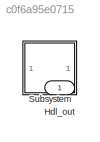
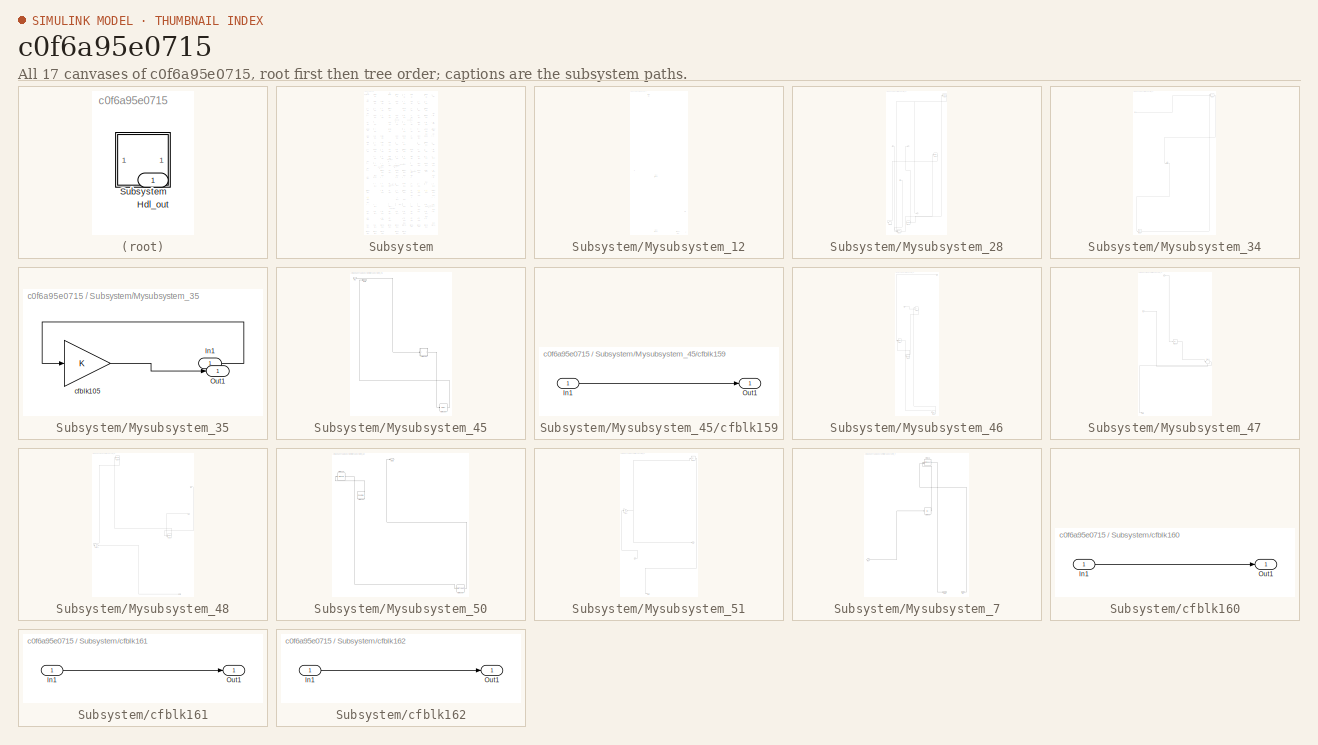
[diagram: thumbnail index - all 17 canvases of the model, root first then tree order]
MODEL slx_c0f6a95e0715
KIND model
CONFIG AbsTol = auto
CONFIG EnableMultiTasking = off
CONFIG FixedStep = auto
CONFIG MaxStep = auto
CONFIG MinStep = auto
CONFIG RelTol = 1e-3
CONFIG SampleTimeConstraint = Unconstrained
CONFIG SolverName = VariableStepAuto
CONFIG StartTime = 0.0
CONFIG StopTime = 10.0
BLOCK [Outport] Hdl_out
  OutDataTypeStr = uint8
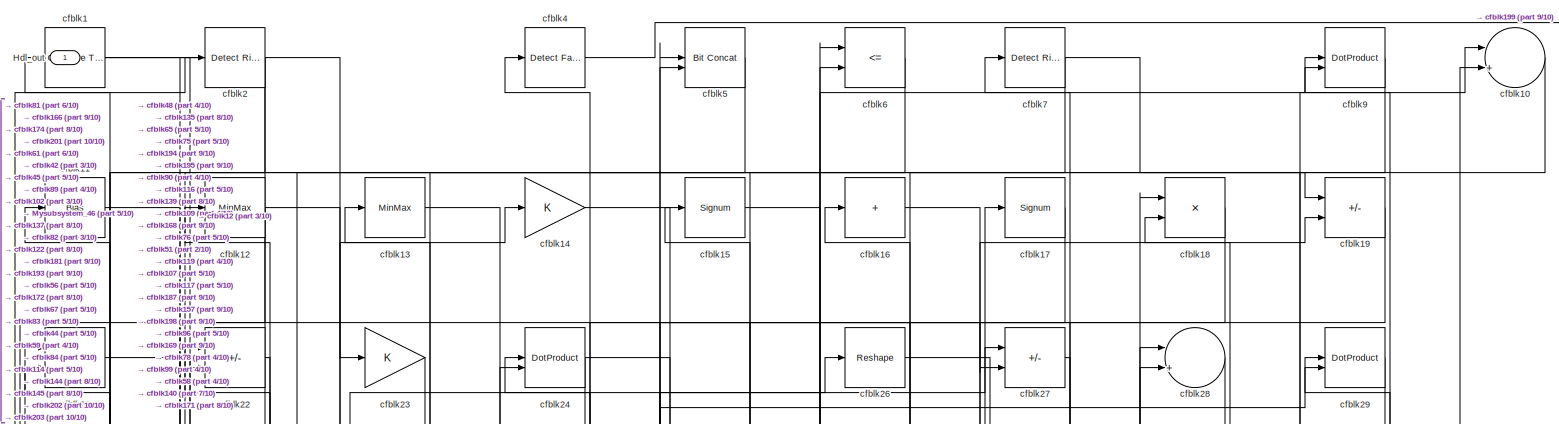
[diagram: Subsystem - part 1/10, full width, top band]
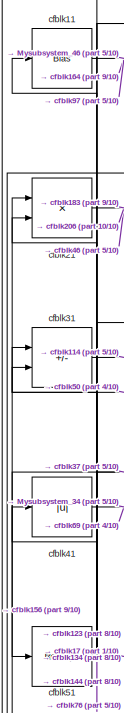
[diagram: Subsystem - part 2/10, top left region]
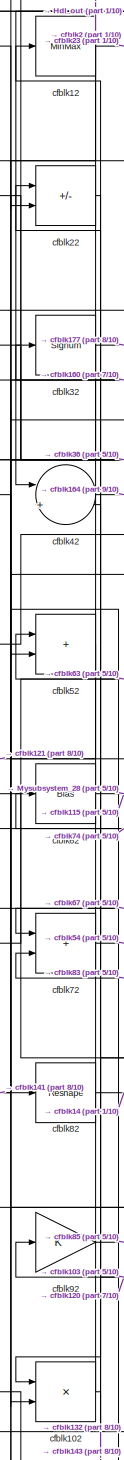
[diagram: Subsystem - part 3/10, top left region]
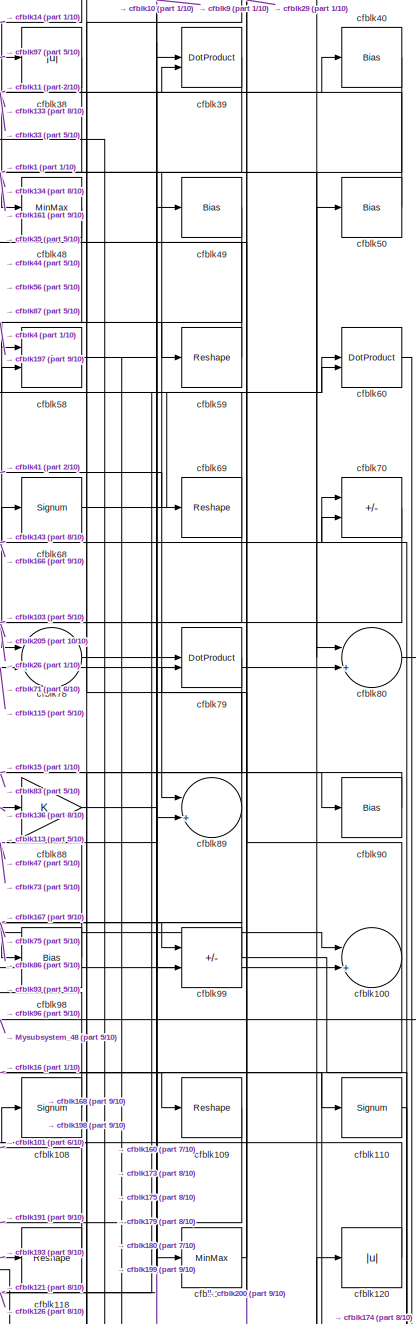
[diagram: Subsystem - part 4/10, middle right region]
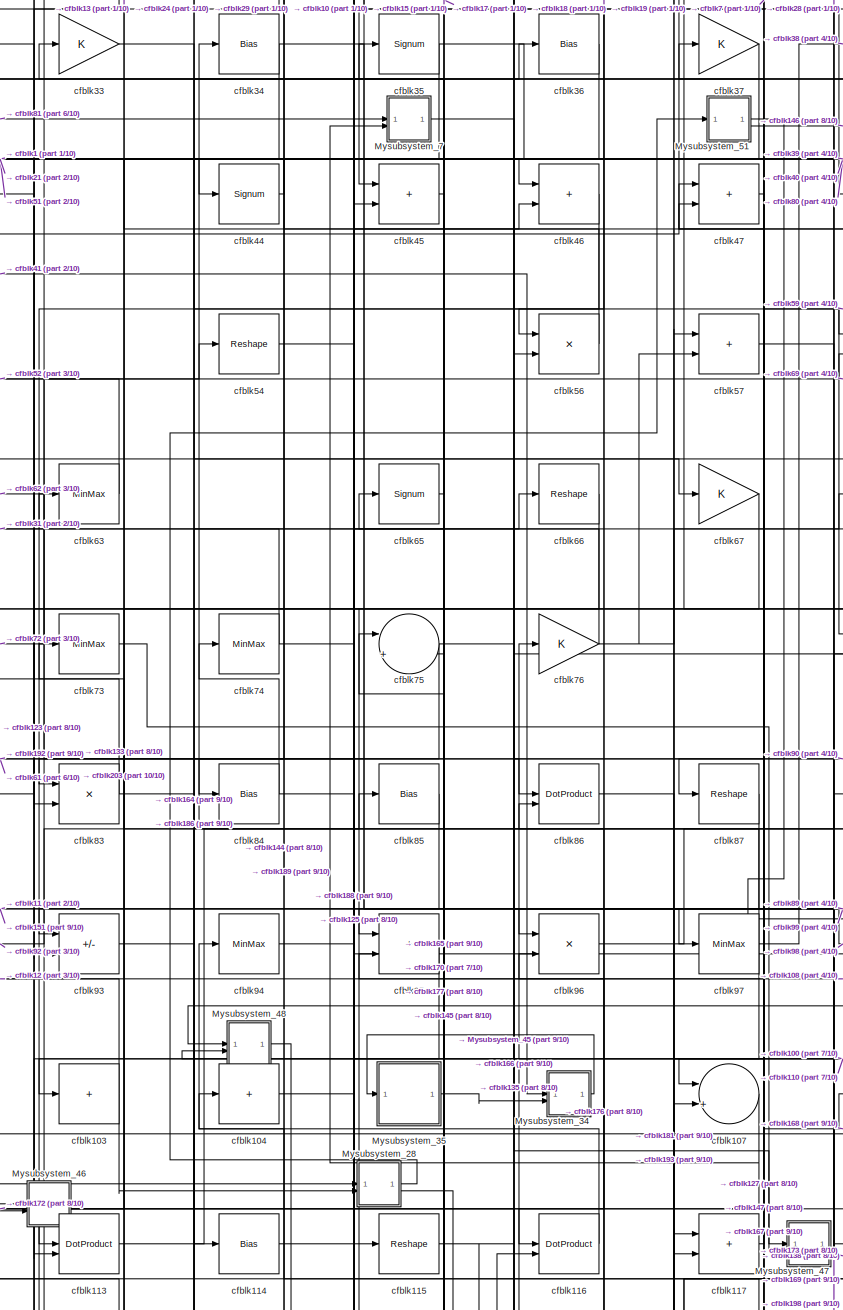
[diagram: Subsystem - part 5/10, central region]
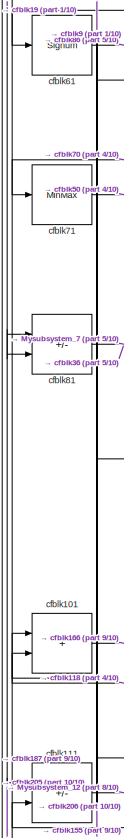
[diagram: Subsystem - part 6/10, middle left region]
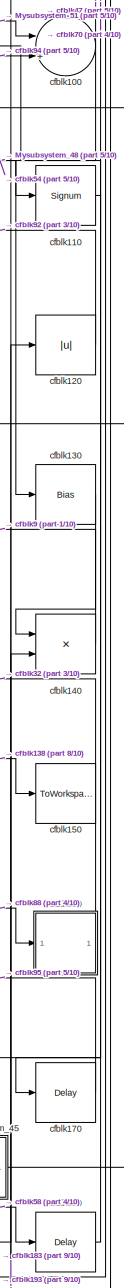
[diagram: Subsystem - part 7/10, middle right region]
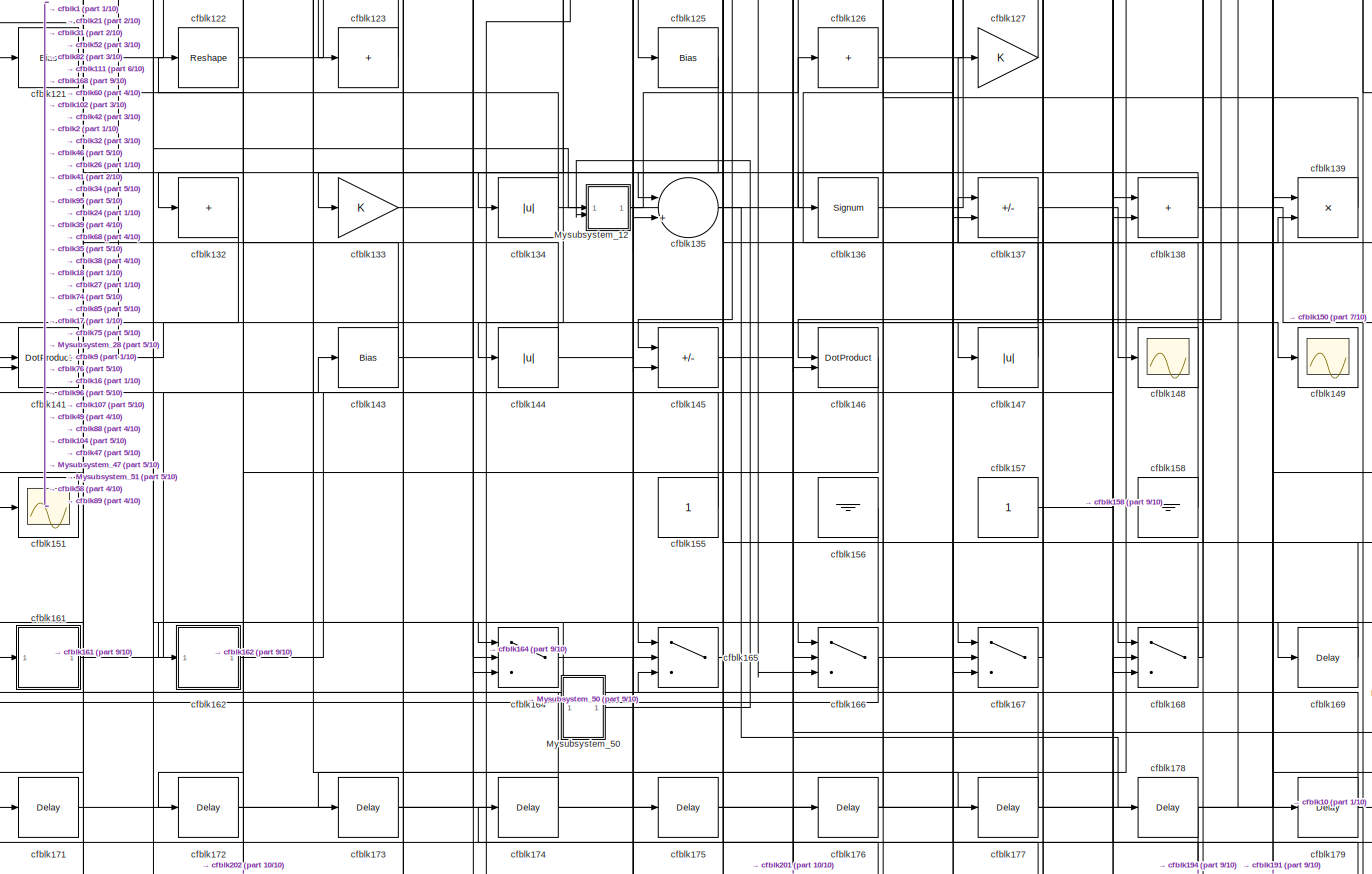
[diagram: Subsystem - part 8/10, full width, bottom band]
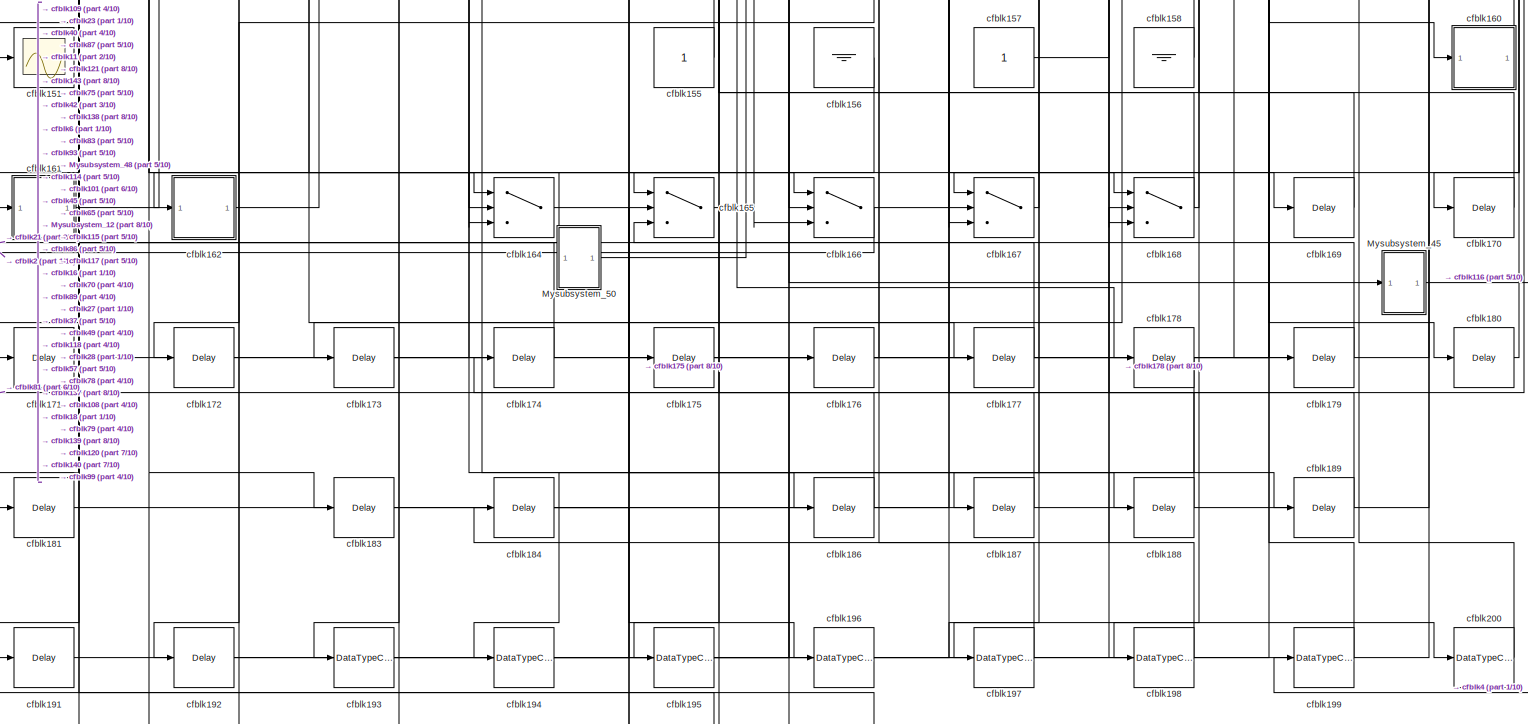
[diagram: Subsystem - part 9/10, full width, bottom band]
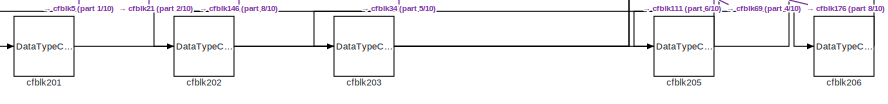
[diagram: Subsystem - part 10/10, bottom left region]
BLOCK [SubSystem] Subsystem
BLOCK [Outport] Subsystem/Hdl_out
  OutDataTypeStr = uint8
BLOCK [SubSystem] Subsystem/Mysubsystem_12
  RTWFcnName = Mysubsystem_12
  RTWFcnNameOpts = User specified
  RTWFileNameOpts = Use function name
  RTWSystemCode = Reusable function
  TreatAsAtomicUnit = on
BLOCK [Inport] Subsystem/Mysubsystem_12/In1
BLOCK [Outport] Subsystem/Mysubsystem_12/Out1
BLOCK [DotProduct] Subsystem/Mysubsystem_12/cfblk124
  OutDataTypeStr = Inherit: Inherit via internal rule
BLOCK [DataTypeConversion] Subsystem/Mysubsystem_12/cfblk204
  OutDataTypeStr = uint8
  RndMeth = Floor
  SaturateOnIntegerOverflow = off
BLOCK [DataTypeConversion] Subsystem/Mysubsystem_12/cfblk207
  OutDataTypeStr = uint8
  RndMeth = Floor
  SaturateOnIntegerOverflow = off
BLOCK [Reference] Subsystem/Mysubsystem_12/cfblk3  REF=simulink/Logic and Bit
Operations/Extract Bits
  LibrarySourceBlock = hdlsllib/Logic and Bit\nOperations/Extract Bits
  SourceBlock = simulink/Logic and Bit\nOperations/Extract Bits
  SourceType = Extract Bits
BLOCK [Inport] Subsystem/Mysubsystem_12/u
  Port = 2
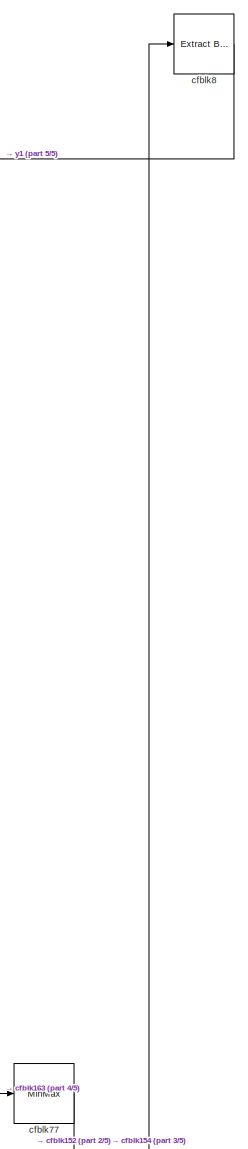
[diagram: Subsystem/Mysubsystem_28 - part 1/5, top right region]
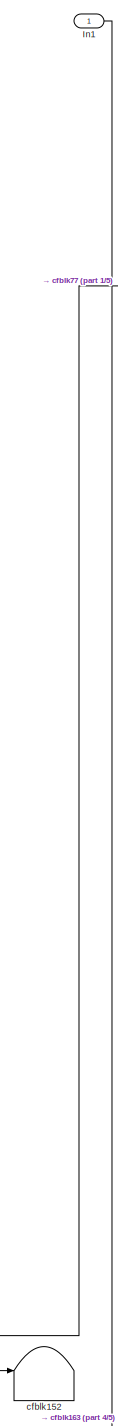
[diagram: Subsystem/Mysubsystem_28 - part 2/5, middle left region]
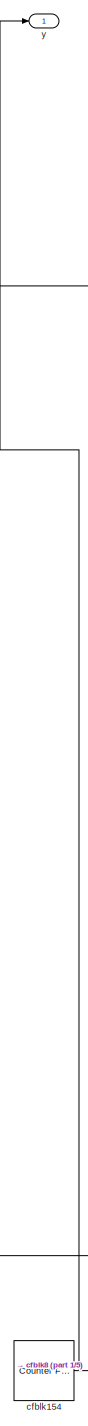
[diagram: Subsystem/Mysubsystem_28 - part 3/5, central region]
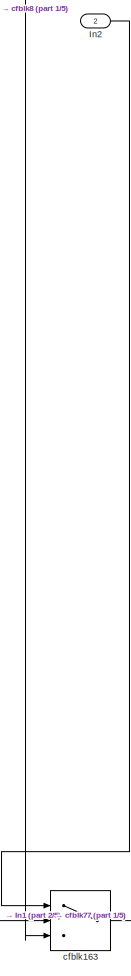
[diagram: Subsystem/Mysubsystem_28 - part 4/5, bottom left region]
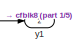
[diagram: Subsystem/Mysubsystem_28 - part 5/5, bottom center region]
BLOCK [SubSystem] Subsystem/Mysubsystem_28
  RTWFcnName = Mysubsystem_28
  RTWFcnNameOpts = User specified
  RTWFileNameOpts = Use function name
  RTWSystemCode = Reusable function
  TreatAsAtomicUnit = on
BLOCK [Inport] Subsystem/Mysubsystem_28/In1
BLOCK [Inport] Subsystem/Mysubsystem_28/In2
  Port = 2
BLOCK [Terminator] Subsystem/Mysubsystem_28/cfblk152
BLOCK [Reference] Subsystem/Mysubsystem_28/cfblk154  REF=hdlsllib/Sources/Counter
Free-Running
  SourceBlock = hdlsllib/Sources/Counter\nFree-Running
  SourceType = Counter Free-Running
BLOCK [Switch] Subsystem/Mysubsystem_28/cfblk163
  InputSameDT = off
  SaturateOnIntegerOverflow = off
BLOCK [MinMax] Subsystem/Mysubsystem_28/cfblk77
BLOCK [Reference] Subsystem/Mysubsystem_28/cfblk8  REF=simulink/Logic and Bit
Operations/Extract Bits
  LibrarySourceBlock = hdlsllib/Logic and Bit\nOperations/Extract Bits
  SourceBlock = simulink/Logic and Bit\nOperations/Extract Bits
  SourceType = Extract Bits
BLOCK [Outport] Subsystem/Mysubsystem_28/y
BLOCK [Outport] Subsystem/Mysubsystem_28/y1
  Port = 2
BLOCK [SubSystem] Subsystem/Mysubsystem_34
  RTWFcnName = Mysubsystem_34
  RTWFcnNameOpts = User specified
  RTWFileNameOpts = Use function name
  RTWSystemCode = Reusable function
  TreatAsAtomicUnit = on
BLOCK [Inport] Subsystem/Mysubsystem_34/In1
BLOCK [Inport] Subsystem/Mysubsystem_34/In2
  Port = 2
BLOCK [Outport] Subsystem/Mysubsystem_34/Out1
BLOCK [Delay] Subsystem/Mysubsystem_34/cfblk182
  InputPortMap = u0
  SampleTime = 1
BLOCK [Sum] Subsystem/Mysubsystem_34/cfblk30
  IconShape = rectangular
  Inputs = +-
BLOCK [SubSystem] Subsystem/Mysubsystem_35
  RTWFcnName = Mysubsystem_35
  RTWFcnNameOpts = User specified
  RTWFileNameOpts = Use function name
  RTWSystemCode = Reusable function
  TreatAsAtomicUnit = on
BLOCK [Inport] Subsystem/Mysubsystem_35/In1
BLOCK [Outport] Subsystem/Mysubsystem_35/Out1
BLOCK [Gain] Subsystem/Mysubsystem_35/cfblk105
BLOCK [SubSystem] Subsystem/Mysubsystem_45
  RTWFcnName = Mysubsystem_45
  RTWFcnNameOpts = User specified
  RTWFileNameOpts = Use function name
  RTWSystemCode = Reusable function
  TreatAsAtomicUnit = on
BLOCK [Inport] Subsystem/Mysubsystem_45/In1
BLOCK [Outport] Subsystem/Mysubsystem_45/Out1
BLOCK [SubSystem] Subsystem/Mysubsystem_45/cfblk159
  LibrarySourceBlock = hdlsllib/Ports &\nSubsystems/Subsystem
BLOCK [Inport] Subsystem/Mysubsystem_45/cfblk159/In1
BLOCK [Outport] Subsystem/Mysubsystem_45/cfblk159/Out1
BLOCK [Delay] Subsystem/Mysubsystem_45/cfblk190
  InputPortMap = u0
  SampleTime = 1
BLOCK [SubSystem] Subsystem/Mysubsystem_46
  RTWFcnName = Mysubsystem_46
  RTWFcnNameOpts = User specified
  RTWFileNameOpts = Use function name
  RTWSystemCode = Reusable function
  TreatAsAtomicUnit = on
BLOCK [Inport] Subsystem/Mysubsystem_46/In1
BLOCK [Inport] Subsystem/Mysubsystem_46/In2
  Port = 2
BLOCK [Reshape] Subsystem/Mysubsystem_46/cfblk112
BLOCK [Delay] Subsystem/Mysubsystem_46/cfblk185
  InputPortMap = u0
  SampleTime = 1
BLOCK [Sum] Subsystem/Mysubsystem_46/cfblk53
  IconShape = rectangular
BLOCK [DotProduct] Subsystem/Mysubsystem_46/cfblk91
  OutDataTypeStr = Inherit: Inherit via internal rule
BLOCK [SubSystem] Subsystem/Mysubsystem_47
  RTWFcnName = Mysubsystem_47
  RTWFcnNameOpts = User specified
  RTWFileNameOpts = Use function name
  RTWSystemCode = Reusable function
  TreatAsAtomicUnit = on
BLOCK [Inport] Subsystem/Mysubsystem_47/In1
BLOCK [Inport] Subsystem/Mysubsystem_47/In2
  Port = 2
BLOCK [Outport] Subsystem/Mysubsystem_47/Out1
BLOCK [Abs] Subsystem/Mysubsystem_47/cfblk106
  SaturateOnIntegerOverflow = off
BLOCK [Sum] Subsystem/Mysubsystem_47/cfblk129
  Inputs = |++
BLOCK [SubSystem] Subsystem/Mysubsystem_48
  RTWFcnName = Mysubsystem_48
  RTWFcnNameOpts = User specified
  RTWFileNameOpts = Use function name
  RTWSystemCode = Reusable function
  TreatAsAtomicUnit = on
BLOCK [Inport] Subsystem/Mysubsystem_48/In1
BLOCK [Inport] Subsystem/Mysubsystem_48/In2
  Port = 2
BLOCK [Outport] Subsystem/Mysubsystem_48/Out1
BLOCK [DotProduct] Subsystem/Mysubsystem_48/cfblk128
  OutDataTypeStr = Inherit: Inherit via internal rule
BLOCK [Gain] Subsystem/Mysubsystem_48/cfblk131
BLOCK [Signum] Subsystem/Mysubsystem_48/cfblk43
BLOCK [SubSystem] Subsystem/Mysubsystem_50
  RTWFcnName = Mysubsystem_50
  RTWFcnNameOpts = User specified
  RTWFileNameOpts = Use function name
  RTWSystemCode = Reusable function
  TreatAsAtomicUnit = on
BLOCK [Outport] Subsystem/Mysubsystem_50/Out1
BLOCK [Signum] Subsystem/Mysubsystem_50/cfblk142
BLOCK [Reference] Subsystem/Mysubsystem_50/cfblk153  REF=hdlsllib/Sources/Counter
Limited
  SourceBlock = hdlsllib/Sources/Counter\nLimited
  SourceType = Counter Limited
BLOCK [DataTypeConversion] Subsystem/Mysubsystem_50/cfblk208
  OutDataTypeStr = uint8
  RndMeth = Floor
  SaturateOnIntegerOverflow = off
BLOCK [SubSystem] Subsystem/Mysubsystem_51
  RTWFcnName = Mysubsystem_51
  RTWFcnNameOpts = User specified
  RTWFileNameOpts = Use function name
  RTWSystemCode = Reusable function
  TreatAsAtomicUnit = on
BLOCK [Inport] Subsystem/Mysubsystem_51/In1
BLOCK [Outport] Subsystem/Mysubsystem_51/Out1
BLOCK [Outport] Subsystem/Mysubsystem_51/Out2
  Port = 2
BLOCK [Abs] Subsystem/Mysubsystem_51/cfblk20
  SaturateOnIntegerOverflow = off
BLOCK [Gain] Subsystem/Mysubsystem_51/cfblk64
BLOCK [SubSystem] Subsystem/Mysubsystem_7
  RTWFcnName = Mysubsystem_7
  RTWFcnNameOpts = User specified
  RTWFileNameOpts = Use function name
  RTWSystemCode = Reusable function
  TreatAsAtomicUnit = on
BLOCK [Inport] Subsystem/Mysubsystem_7/In1
BLOCK [Inport] Subsystem/Mysubsystem_7/In2
  Port = 2
BLOCK [Outport] Subsystem/Mysubsystem_7/Out1
BLOCK [DotProduct] Subsystem/Mysubsystem_7/cfblk25
  OutDataTypeStr = Inherit: Inherit via internal rule
BLOCK [Abs] Subsystem/Mysubsystem_7/cfblk55
  SaturateOnIntegerOverflow = off
BLOCK [Reference] Subsystem/cfblk1  REF=hdlsllib/Logic and Bit
Operations/Compare
To Constant
  SourceBlock = hdlsllib/Logic and Bit\nOperations/Compare\nTo Constant
  SourceType = Compare To Constant
BLOCK [Sum] Subsystem/cfblk10
  Inputs = |++
  OutDataTypeStr = uint8
BLOCK [Sum] Subsystem/cfblk100
  Inputs = |++
  OutDataTypeStr = uint8
BLOCK [Sum] Subsystem/cfblk101
  IconShape = rectangular
  OutDataTypeStr = uint8
BLOCK [Product] Subsystem/cfblk102
  Inputs = */
  OutDataTypeStr = uint8
  RndMeth = Zero
  SaturateOnIntegerOverflow = on
BLOCK [Sum] Subsystem/cfblk103
  IconShape = rectangular
  Inputs = +
  OutDataTypeStr = uint8
BLOCK [Sum] Subsystem/cfblk104
  IconShape = rectangular
  Inputs = +
  OutDataTypeStr = uint8
BLOCK [Sum] Subsystem/cfblk107
  Inputs = |++
  OutDataTypeStr = uint8
BLOCK [Signum] Subsystem/cfblk108
BLOCK [Reshape] Subsystem/cfblk109
BLOCK [Bias] Subsystem/cfblk11
  Bias = 0.0
  SaturateOnIntegerOverflow = off
BLOCK [Signum] Subsystem/cfblk110
BLOCK [Sum] Subsystem/cfblk111
  IconShape = rectangular
  Inputs = +-
  OutDataTypeStr = uint8
BLOCK [DotProduct] Subsystem/cfblk113
  OutDataTypeStr = uint8
BLOCK [Bias] Subsystem/cfblk114
  Bias = 0.0
  SaturateOnIntegerOverflow = off
BLOCK [Reshape] Subsystem/cfblk115
BLOCK [DotProduct] Subsystem/cfblk116
  OutDataTypeStr = uint8
BLOCK [Sum] Subsystem/cfblk117
  IconShape = rectangular
  OutDataTypeStr = uint8
BLOCK [Reshape] Subsystem/cfblk118
BLOCK [MinMax] Subsystem/cfblk119
  OutDataTypeStr = uint8
BLOCK [MinMax] Subsystem/cfblk12
  OutDataTypeStr = uint8
BLOCK [Abs] Subsystem/cfblk120
  OutDataTypeStr = uint8
  SaturateOnIntegerOverflow = off
BLOCK [Bias] Subsystem/cfblk121
  Bias = 0.0
  SaturateOnIntegerOverflow = off
BLOCK [Reshape] Subsystem/cfblk122
BLOCK [Sum] Subsystem/cfblk123
  IconShape = rectangular
  Inputs = +
  OutDataTypeStr = uint8
BLOCK [Bias] Subsystem/cfblk125
  Bias = 0.0
  SaturateOnIntegerOverflow = off
BLOCK [Sum] Subsystem/cfblk126
  IconShape = rectangular
  Inputs = +
  OutDataTypeStr = uint8
BLOCK [Gain] Subsystem/cfblk127
  OutDataTypeStr = uint8
BLOCK [MinMax] Subsystem/cfblk13
  OutDataTypeStr = uint8
BLOCK [Bias] Subsystem/cfblk130
  Bias = 0.0
  SaturateOnIntegerOverflow = off
BLOCK [Sum] Subsystem/cfblk132
  IconShape = rectangular
  Inputs = +
  OutDataTypeStr = uint8
BLOCK [Gain] Subsystem/cfblk133
  OutDataTypeStr = uint8
BLOCK [Abs] Subsystem/cfblk134
  OutDataTypeStr = uint8
  SaturateOnIntegerOverflow = off
BLOCK [Sum] Subsystem/cfblk135
  Inputs = |++
  OutDataTypeStr = uint8
BLOCK [Signum] Subsystem/cfblk136
BLOCK [Sum] Subsystem/cfblk137
  IconShape = rectangular
  Inputs = +-
  OutDataTypeStr = uint8
BLOCK [Sum] Subsystem/cfblk138
  IconShape = rectangular
  OutDataTypeStr = uint8
BLOCK [Product] Subsystem/cfblk139
  Inputs = */
  OutDataTypeStr = uint8
  RndMeth = Zero
  SaturateOnIntegerOverflow = on
BLOCK [Gain] Subsystem/cfblk14
  OutDataTypeStr = uint8
BLOCK [Product] Subsystem/cfblk140
  Inputs = */
  OutDataTypeStr = uint8
  RndMeth = Zero
  SaturateOnIntegerOverflow = on
BLOCK [DotProduct] Subsystem/cfblk141
  OutDataTypeStr = uint8
BLOCK [Bias] Subsystem/cfblk143
  Bias = 0.0
  SaturateOnIntegerOverflow = off
BLOCK [Abs] Subsystem/cfblk144
  OutDataTypeStr = uint8
  SaturateOnIntegerOverflow = off
BLOCK [Sum] Subsystem/cfblk145
  IconShape = rectangular
  Inputs = +-
  OutDataTypeStr = uint8
BLOCK [DotProduct] Subsystem/cfblk146
  OutDataTypeStr = uint8
BLOCK [Abs] Subsystem/cfblk147
  OutDataTypeStr = uint8
  SaturateOnIntegerOverflow = off
BLOCK [Scope] Subsystem/cfblk148
  Floating = off
  NumInputPorts = 1
  ScopeSpecificationString = Simulink.scopes.TimeScopeBlockCfg('CurrentConfiguration', extmgr.ConfigurationSet(extmgr.Configuration('Core','General UI',true),extmgr.Configuration('Core','Source UI',true),extmgr.Configuration('Sources','WiredSimulink',true,'DataLoggingVariableName','ScopeData1','DataLoggingSaveFormat','Array','DataLoggingLimitDataPoints',true,'DataLoggingDecimation','1'),extmgr.Configuration('Visuals','Time Do...<+868ch>
BLOCK [Scope] Subsystem/cfblk149
  Floating = off
  NumInputPorts = 1
  ScopeSpecificationString = Simulink.scopes.TimeScopeBlockCfg('CurrentConfiguration', extmgr.ConfigurationSet(extmgr.Configuration('Core','General UI',true),extmgr.Configuration('Core','Source UI',true),extmgr.Configuration('Sources','WiredSimulink',true,'DataLoggingVariableName','ScopeData2','DataLoggingSaveFormat','Array','DataLoggingLimitDataPoints',true,'DataLoggingDecimation','1'),extmgr.Configuration('Visuals','Time Do...<+868ch>
BLOCK [Signum] Subsystem/cfblk15
BLOCK [ToWorkspace] Subsystem/cfblk150
  MaxDataPoints = inf
  SampleTime = -1
  SaveFormat = Timeseries
  VariableName = simout
BLOCK [Scope] Subsystem/cfblk151
  Floating = off
  NumInputPorts = 1
  ScopeSpecificationString = Simulink.scopes.TimeScopeBlockCfg('CurrentConfiguration', extmgr.ConfigurationSet(extmgr.Configuration('Core','General UI',true),extmgr.Configuration('Core','Source UI',true),extmgr.Configuration('Sources','WiredSimulink',true,'DataLoggingSaveFormat','Array','DataLoggingLimitDataPoints',true,'DataLoggingDecimation','1'),extmgr.Configuration('Visuals','Time Domain',true,'DisplayPropertyDefaults',st...<+829ch>
BLOCK [Constant] Subsystem/cfblk155
  OutDataTypeStr = uint8
  SampleTime = -1
BLOCK [Ground] Subsystem/cfblk156
BLOCK [Constant] Subsystem/cfblk157
  OutDataTypeStr = uint8
  SampleTime = -1
BLOCK [Ground] Subsystem/cfblk158
BLOCK [Sum] Subsystem/cfblk16
  IconShape = rectangular
  Inputs = +
  OutDataTypeStr = uint8
BLOCK [SubSystem] Subsystem/cfblk160
  LibrarySourceBlock = hdlsllib/Ports &\nSubsystems/Subsystem
BLOCK [Inport] Subsystem/cfblk160/In1
BLOCK [Outport] Subsystem/cfblk160/Out1
BLOCK [SubSystem] Subsystem/cfblk161
  LibrarySourceBlock = hdlsllib/Ports &\nSubsystems/Subsystem
BLOCK [Inport] Subsystem/cfblk161/In1
BLOCK [Outport] Subsystem/cfblk161/Out1
BLOCK [SubSystem] Subsystem/cfblk162
  LibrarySourceBlock = hdlsllib/Ports &\nSubsystems/Subsystem
BLOCK [Inport] Subsystem/cfblk162/In1
BLOCK [Outport] Subsystem/cfblk162/Out1
BLOCK [Switch] Subsystem/cfblk164
  InputSameDT = off
  OutDataTypeStr = uint8
  SaturateOnIntegerOverflow = off
BLOCK [Switch] Subsystem/cfblk165
  InputSameDT = off
  OutDataTypeStr = uint8
  SaturateOnIntegerOverflow = off
BLOCK [Switch] Subsystem/cfblk166
  InputSameDT = off
  OutDataTypeStr = uint8
  SaturateOnIntegerOverflow = off
BLOCK [Switch] Subsystem/cfblk167
  InputSameDT = off
  OutDataTypeStr = uint8
  SaturateOnIntegerOverflow = off
BLOCK [Switch] Subsystem/cfblk168
  InputSameDT = off
  OutDataTypeStr = uint8
  SaturateOnIntegerOverflow = off
BLOCK [Delay] Subsystem/cfblk169
  InputPortMap = u0
  SampleTime = 1
BLOCK [Signum] Subsystem/cfblk17
BLOCK [Delay] Subsystem/cfblk170
  InputPortMap = u0
  SampleTime = 1
BLOCK [Delay] Subsystem/cfblk171
  InputPortMap = u0
  SampleTime = 1
BLOCK [Delay] Subsystem/cfblk172
  InputPortMap = u0
  SampleTime = 1
BLOCK [Delay] Subsystem/cfblk173
  InputPortMap = u0
  SampleTime = 1
BLOCK [Delay] Subsystem/cfblk174
  InputPortMap = u0
  SampleTime = 1
BLOCK [Delay] Subsystem/cfblk175
  InputPortMap = u0
  SampleTime = 1
BLOCK [Delay] Subsystem/cfblk176
  InputPortMap = u0
  SampleTime = 1
BLOCK [Delay] Subsystem/cfblk177
  InputPortMap = u0
  SampleTime = 1
BLOCK [Delay] Subsystem/cfblk178
  InputPortMap = u0
  SampleTime = 1
BLOCK [Delay] Subsystem/cfblk179
  InputPortMap = u0
  SampleTime = 1
BLOCK [Product] Subsystem/cfblk18
  Inputs = */
  OutDataTypeStr = uint8
  RndMeth = Zero
  SaturateOnIntegerOverflow = on
BLOCK [Delay] Subsystem/cfblk180
  InputPortMap = u0
  SampleTime = 1
BLOCK [Delay] Subsystem/cfblk181
  InputPortMap = u0
  SampleTime = 1
BLOCK [Delay] Subsystem/cfblk183
  InputPortMap = u0
  SampleTime = 1
BLOCK [Delay] Subsystem/cfblk184
  InputPortMap = u0
  SampleTime = 1
BLOCK [Delay] Subsystem/cfblk186
  InputPortMap = u0
  SampleTime = 1
BLOCK [Delay] Subsystem/cfblk187
  InputPortMap = u0
  SampleTime = 1
BLOCK [Delay] Subsystem/cfblk188
  InputPortMap = u0
  SampleTime = 1
BLOCK [Delay] Subsystem/cfblk189
  InputPortMap = u0
  SampleTime = 1
BLOCK [Sum] Subsystem/cfblk19
  IconShape = rectangular
  Inputs = +-
  OutDataTypeStr = uint8
BLOCK [Delay] Subsystem/cfblk191
  InputPortMap = u0
  SampleTime = 1
BLOCK [Delay] Subsystem/cfblk192
  InputPortMap = u0
  SampleTime = 1
BLOCK [DataTypeConversion] Subsystem/cfblk193
  OutDataTypeStr = uint8
  RndMeth = Floor
  SaturateOnIntegerOverflow = off
BLOCK [DataTypeConversion] Subsystem/cfblk194
  OutDataTypeStr = uint8
  RndMeth = Floor
  SaturateOnIntegerOverflow = off
BLOCK [DataTypeConversion] Subsystem/cfblk195
  OutDataTypeStr = uint8
  RndMeth = Floor
  SaturateOnIntegerOverflow = off
BLOCK [DataTypeConversion] Subsystem/cfblk196
  OutDataTypeStr = uint8
  RndMeth = Floor
  SaturateOnIntegerOverflow = off
BLOCK [DataTypeConversion] Subsystem/cfblk197
  OutDataTypeStr = uint8
  RndMeth = Floor
  SaturateOnIntegerOverflow = off
BLOCK [DataTypeConversion] Subsystem/cfblk198
  OutDataTypeStr = uint8
  RndMeth = Floor
  SaturateOnIntegerOverflow = off
BLOCK [DataTypeConversion] Subsystem/cfblk199
  OutDataTypeStr = uint8
  RndMeth = Floor
  SaturateOnIntegerOverflow = off
BLOCK [Reference] Subsystem/cfblk2  REF=hdlsllib/Logic and Bit
Operations/Detect Rise
Nonnegative
  SourceBlock = hdlsllib/Logic and Bit\nOperations/Detect Rise\nNonnegative
  SourceType = Detect Rise Nonnegative
BLOCK [DataTypeConversion] Subsystem/cfblk200
  OutDataTypeStr = uint8
  RndMeth = Floor
  SaturateOnIntegerOverflow = off
BLOCK [DataTypeConversion] Subsystem/cfblk201
  OutDataTypeStr = uint8
  RndMeth = Floor
  SaturateOnIntegerOverflow = off
BLOCK [DataTypeConversion] Subsystem/cfblk202
  OutDataTypeStr = uint8
  RndMeth = Floor
  SaturateOnIntegerOverflow = off
BLOCK [DataTypeConversion] Subsystem/cfblk203
  OutDataTypeStr = uint8
  RndMeth = Floor
  SaturateOnIntegerOverflow = off
BLOCK [DataTypeConversion] Subsystem/cfblk205
  OutDataTypeStr = uint8
  RndMeth = Floor
  SaturateOnIntegerOverflow = off
BLOCK [DataTypeConversion] Subsystem/cfblk206
  OutDataTypeStr = uint8
  RndMeth = Floor
  SaturateOnIntegerOverflow = off
BLOCK [Product] Subsystem/cfblk21
  Inputs = */
  OutDataTypeStr = uint8
  RndMeth = Zero
  SaturateOnIntegerOverflow = on
BLOCK [Sum] Subsystem/cfblk22
  IconShape = rectangular
  Inputs = +-
  OutDataTypeStr = uint8
BLOCK [Gain] Subsystem/cfblk23
  OutDataTypeStr = uint8
BLOCK [DotProduct] Subsystem/cfblk24
  OutDataTypeStr = uint8
BLOCK [Reshape] Subsystem/cfblk26
BLOCK [Sum] Subsystem/cfblk27
  IconShape = rectangular
  Inputs = +-
  OutDataTypeStr = uint8
BLOCK [Sum] Subsystem/cfblk28
  Inputs = |++
  OutDataTypeStr = uint8
BLOCK [DotProduct] Subsystem/cfblk29
  OutDataTypeStr = uint8
BLOCK [Sum] Subsystem/cfblk31
  IconShape = rectangular
  Inputs = +-
  OutDataTypeStr = uint8
BLOCK [Signum] Subsystem/cfblk32
BLOCK [Gain] Subsystem/cfblk33
  OutDataTypeStr = uint8
BLOCK [Bias] Subsystem/cfblk34
  Bias = 0.0
  SaturateOnIntegerOverflow = off
BLOCK [Signum] Subsystem/cfblk35
BLOCK [Bias] Subsystem/cfblk36
  Bias = 0.0
  SaturateOnIntegerOverflow = off
BLOCK [Gain] Subsystem/cfblk37
  OutDataTypeStr = uint8
BLOCK [Abs] Subsystem/cfblk38
  OutDataTypeStr = uint8
  SaturateOnIntegerOverflow = off
BLOCK [DotProduct] Subsystem/cfblk39
  OutDataTypeStr = uint8
BLOCK [Reference] Subsystem/cfblk4  REF=hdlsllib/Logic and Bit
Operations/Detect Fall
Nonpositive
  SourceBlock = hdlsllib/Logic and Bit\nOperations/Detect Fall\nNonpositive
  SourceType = Detect Fall Nonpositive
BLOCK [Bias] Subsystem/cfblk40
  Bias = 0.0
  SaturateOnIntegerOverflow = off
BLOCK [Abs] Subsystem/cfblk41
  OutDataTypeStr = uint8
  SaturateOnIntegerOverflow = off
BLOCK [Sum] Subsystem/cfblk42
  Inputs = |++
  OutDataTypeStr = uint8
BLOCK [Signum] Subsystem/cfblk44
BLOCK [Sum] Subsystem/cfblk45
  IconShape = rectangular
  OutDataTypeStr = uint8
BLOCK [Sum] Subsystem/cfblk46
  IconShape = rectangular
  OutDataTypeStr = uint8
BLOCK [Sum] Subsystem/cfblk47
  IconShape = rectangular
  OutDataTypeStr = uint8
BLOCK [MinMax] Subsystem/cfblk48
  OutDataTypeStr = uint8
BLOCK [Bias] Subsystem/cfblk49
  Bias = 0.0
  SaturateOnIntegerOverflow = off
BLOCK [Reference] Subsystem/cfblk5  REF=hdlsllib/Logic and Bit
Operations/Bit Concat
  SourceBlock = hdlsllib/Logic and Bit\nOperations/Bit Concat
  SourceType = Bit Concat
BLOCK [Bias] Subsystem/cfblk50
  Bias = 0.0
  SaturateOnIntegerOverflow = off
BLOCK [Reshape] Subsystem/cfblk51
BLOCK [Sum] Subsystem/cfblk52
  IconShape = rectangular
  OutDataTypeStr = uint8
BLOCK [Reshape] Subsystem/cfblk54
BLOCK [Product] Subsystem/cfblk56
  Inputs = */
  OutDataTypeStr = uint8
  RndMeth = Zero
  SaturateOnIntegerOverflow = on
BLOCK [Sum] Subsystem/cfblk57
  IconShape = rectangular
  OutDataTypeStr = uint8
BLOCK [Sum] Subsystem/cfblk58
  IconShape = rectangular
  OutDataTypeStr = uint8
BLOCK [Reshape] Subsystem/cfblk59
BLOCK [RelationalOperator] Subsystem/cfblk6
  InputSameDT = off
  Operator = <=
  OutDataTypeStr = boolean
BLOCK [DotProduct] Subsystem/cfblk60
  OutDataTypeStr = uint8
BLOCK [Signum] Subsystem/cfblk61
BLOCK [Bias] Subsystem/cfblk62
  Bias = 0.0
  SaturateOnIntegerOverflow = off
BLOCK [MinMax] Subsystem/cfblk63
  OutDataTypeStr = uint8
BLOCK [Signum] Subsystem/cfblk65
BLOCK [Reshape] Subsystem/cfblk66
BLOCK [Gain] Subsystem/cfblk67
  OutDataTypeStr = uint8
BLOCK [Signum] Subsystem/cfblk68
BLOCK [Reshape] Subsystem/cfblk69
BLOCK [Reference] Subsystem/cfblk7  REF=hdlsllib/Logic and Bit
Operations/Detect Rise
Positive
  SourceBlock = hdlsllib/Logic and Bit\nOperations/Detect Rise\nPositive
  SourceType = Detect Rise Positive
BLOCK [Sum] Subsystem/cfblk70
  IconShape = rectangular
  Inputs = +-
  OutDataTypeStr = uint8
BLOCK [MinMax] Subsystem/cfblk71
  OutDataTypeStr = uint8
BLOCK [Sum] Subsystem/cfblk72
  IconShape = rectangular
  OutDataTypeStr = uint8
BLOCK [MinMax] Subsystem/cfblk73
  OutDataTypeStr = uint8
BLOCK [MinMax] Subsystem/cfblk74
  OutDataTypeStr = uint8
BLOCK [Sum] Subsystem/cfblk75
  Inputs = |++
  OutDataTypeStr = uint8
BLOCK [Gain] Subsystem/cfblk76
  OutDataTypeStr = uint8
BLOCK [Sum] Subsystem/cfblk78
  Inputs = |++
  OutDataTypeStr = uint8
BLOCK [DotProduct] Subsystem/cfblk79
  OutDataTypeStr = uint8
BLOCK [Sum] Subsystem/cfblk80
  Inputs = |++
  OutDataTypeStr = uint8
BLOCK [Sum] Subsystem/cfblk81
  IconShape = rectangular
  Inputs = +-
  OutDataTypeStr = uint8
BLOCK [Reshape] Subsystem/cfblk82
BLOCK [Product] Subsystem/cfblk83
  Inputs = */
  OutDataTypeStr = uint8
  RndMeth = Zero
  SaturateOnIntegerOverflow = on
BLOCK [Bias] Subsystem/cfblk84
  Bias = 0.0
  SaturateOnIntegerOverflow = off
BLOCK [Bias] Subsystem/cfblk85
  Bias = 0.0
  SaturateOnIntegerOverflow = off
BLOCK [DotProduct] Subsystem/cfblk86
  OutDataTypeStr = uint8
BLOCK [Reshape] Subsystem/cfblk87
BLOCK [Gain] Subsystem/cfblk88
  OutDataTypeStr = uint8
BLOCK [Sum] Subsystem/cfblk89
  Inputs = |++
  OutDataTypeStr = uint8
BLOCK [DotProduct] Subsystem/cfblk9
  OutDataTypeStr = uint8
BLOCK [Bias] Subsystem/cfblk90
  Bias = 0.0
  SaturateOnIntegerOverflow = off
BLOCK [Gain] Subsystem/cfblk92
  OutDataTypeStr = uint8
BLOCK [Sum] Subsystem/cfblk93
  IconShape = rectangular
  Inputs = +-
  OutDataTypeStr = uint8
BLOCK [MinMax] Subsystem/cfblk94
  OutDataTypeStr = uint8
BLOCK [Sum] Subsystem/cfblk95
  IconShape = rectangular
  OutDataTypeStr = uint8
BLOCK [Product] Subsystem/cfblk96
  Inputs = */
  OutDataTypeStr = uint8
  RndMeth = Zero
  SaturateOnIntegerOverflow = on
BLOCK [MinMax] Subsystem/cfblk97
  OutDataTypeStr = uint8
BLOCK [Bias] Subsystem/cfblk98
  Bias = 0.0
  SaturateOnIntegerOverflow = off
BLOCK [Sum] Subsystem/cfblk99
  IconShape = rectangular
  Inputs = +-
  OutDataTypeStr = uint8
LINE Subsystem/Mysubsystem_12/In1:1 -> Subsystem/Mysubsystem_12/cfblk204:1
LINE Subsystem/Mysubsystem_12/cfblk124:1 -> Subsystem/Mysubsystem_12/Out1:1
LINE Subsystem/Mysubsystem_12/cfblk204:1 -> Subsystem/Mysubsystem_12/cfblk124:1
LINE Subsystem/Mysubsystem_12/cfblk207:1 -> Subsystem/Mysubsystem_12/cfblk124:2
LINE Subsystem/Mysubsystem_12/cfblk3:1 -> Subsystem/Mysubsystem_12/cfblk207:1
LINE Subsystem/Mysubsystem_12/u:1 -> Subsystem/Mysubsystem_12/cfblk3:1
LINE Subsystem/Mysubsystem_12:1 -> Subsystem/cfblk178:1
LINE Subsystem/Mysubsystem_28/In1:1 -> Subsystem/Mysubsystem_28/cfblk163:2
LINE Subsystem/Mysubsystem_28/In2:1 -> Subsystem/Mysubsystem_28/cfblk163:1
NET Subsystem/Mysubsystem_28/cfblk154:1 -> Subsystem/Mysubsystem_28/cfblk8:1, Subsystem/Mysubsystem_28/y:1
LINE Subsystem/Mysubsystem_28/cfblk163:1 -> Subsystem/Mysubsystem_28/cfblk77:1
LINE Subsystem/Mysubsystem_28/cfblk77:1 -> Subsystem/Mysubsystem_28/cfblk152:1
NET Subsystem/Mysubsystem_28/cfblk8:1 -> Subsystem/Mysubsystem_28/cfblk163:3, Subsystem/Mysubsystem_28/y1:1
LINE Subsystem/Mysubsystem_28:1 -> Subsystem/Mysubsystem_51:1
LINE Subsystem/Mysubsystem_28:2 -> Subsystem/cfblk145:1
LINE Subsystem/Mysubsystem_34/In1:1 -> Subsystem/Mysubsystem_34/cfblk30:2
LINE Subsystem/Mysubsystem_34/In2:1 -> Subsystem/Mysubsystem_34/cfblk182:1
LINE Subsystem/Mysubsystem_34/cfblk182:1 -> Subsystem/Mysubsystem_34/cfblk30:1
LINE Subsystem/Mysubsystem_34/cfblk30:1 -> Subsystem/Mysubsystem_34/Out1:1
LINE Subsystem/Mysubsystem_34:1 -> Subsystem/Mysubsystem_35:1
LINE Subsystem/Mysubsystem_35/In1:1 -> Subsystem/Mysubsystem_35/cfblk105:1
LINE Subsystem/Mysubsystem_35/cfblk105:1 -> Subsystem/Mysubsystem_35/Out1:1
LINE Subsystem/Mysubsystem_35:1 -> Subsystem/Mysubsystem_34:2
LINE Subsystem/Mysubsystem_45/In1:1 -> Subsystem/Mysubsystem_45/cfblk159:1
LINE Subsystem/Mysubsystem_45/cfblk159/In1:1 -> Subsystem/Mysubsystem_45/cfblk159/Out1:1
LINE Subsystem/Mysubsystem_45/cfblk159:1 -> Subsystem/Mysubsystem_45/cfblk190:1
LINE Subsystem/Mysubsystem_45/cfblk190:1 -> Subsystem/Mysubsystem_45/Out1:1
LINE Subsystem/Mysubsystem_45:1 -> Subsystem/cfblk116:2
LINE Subsystem/Mysubsystem_46/In1:1 -> Subsystem/Mysubsystem_46/cfblk91:2
LINE Subsystem/Mysubsystem_46/In2:1 -> Subsystem/Mysubsystem_46/cfblk53:2
LINE Subsystem/Mysubsystem_46/cfblk112:1 -> Subsystem/Mysubsystem_46/cfblk91:1
LINE Subsystem/Mysubsystem_46/cfblk185:1 -> Subsystem/Mysubsystem_46/cfblk53:1
LINE Subsystem/Mysubsystem_46/cfblk53:1 -> Subsystem/Mysubsystem_46/cfblk112:1
LINE Subsystem/Mysubsystem_46/cfblk91:1 -> Subsystem/Mysubsystem_46/cfblk185:1
LINE Subsystem/Mysubsystem_47/In1:1 -> Subsystem/Mysubsystem_47/cfblk106:1
LINE Subsystem/Mysubsystem_47/In2:1 -> Subsystem/Mysubsystem_47/cfblk129:2
LINE Subsystem/Mysubsystem_47/cfblk106:1 -> Subsystem/Mysubsystem_47/cfblk129:1
LINE Subsystem/Mysubsystem_47/cfblk129:1 -> Subsystem/Mysubsystem_47/Out1:1
LINE Subsystem/Mysubsystem_47:1 -> Subsystem/cfblk173:1
LINE Subsystem/Mysubsystem_48/In1:1 -> Subsystem/Mysubsystem_48/cfblk128:1
LINE Subsystem/Mysubsystem_48/In2:1 -> Subsystem/Mysubsystem_48/cfblk128:2
LINE Subsystem/Mysubsystem_48/cfblk128:1 -> Subsystem/Mysubsystem_48/cfblk43:1
LINE Subsystem/Mysubsystem_48/cfblk131:1 -> Subsystem/Mysubsystem_48/Out1:1
LINE Subsystem/Mysubsystem_48/cfblk43:1 -> Subsystem/Mysubsystem_48/cfblk131:1
LINE Subsystem/Mysubsystem_48:1 -> Subsystem/cfblk189:1
LINE Subsystem/Mysubsystem_50/cfblk142:1 -> Subsystem/Mysubsystem_50/cfblk208:1
LINE Subsystem/Mysubsystem_50/cfblk153:1 -> Subsystem/Mysubsystem_50/cfblk142:1
LINE Subsystem/Mysubsystem_50/cfblk208:1 -> Subsystem/Mysubsystem_50/Out1:1
LINE Subsystem/Mysubsystem_50:1 -> Subsystem/Mysubsystem_12:2
LINE Subsystem/Mysubsystem_51/In1:1 -> Subsystem/Mysubsystem_51/cfblk64:1
LINE Subsystem/Mysubsystem_51/cfblk20:1 -> Subsystem/Mysubsystem_51/Out2:1
NET Subsystem/Mysubsystem_51/cfblk64:1 -> Subsystem/Mysubsystem_51/Out1:1, Subsystem/Mysubsystem_51/cfblk20:1
LINE Subsystem/Mysubsystem_51:1 -> Subsystem/cfblk100:1
LINE Subsystem/Mysubsystem_51:2 -> Subsystem/cfblk146:1
LINE Subsystem/Mysubsystem_7/In1:1 -> Subsystem/Mysubsystem_7/cfblk55:1
LINE Subsystem/Mysubsystem_7/In2:1 -> Subsystem/Mysubsystem_7/cfblk25:2
LINE Subsystem/Mysubsystem_7/cfblk25:1 -> Subsystem/Mysubsystem_7/Out1:1
LINE Subsystem/Mysubsystem_7/cfblk55:1 -> Subsystem/Mysubsystem_7/cfblk25:1
LINE Subsystem/Mysubsystem_7:1 -> Subsystem/Mysubsystem_47:1
NET Subsystem/cfblk100:1 -> Subsystem/Mysubsystem_48:2, Subsystem/cfblk130:1, Subsystem/cfblk47:2
LINE Subsystem/cfblk101:1 -> Subsystem/cfblk166:2
NET Subsystem/cfblk102:1 -> Subsystem/Hdl_out:1, Subsystem/cfblk132:1
NET Subsystem/cfblk103:1 -> Subsystem/Mysubsystem_28:2, Subsystem/cfblk12:1
LINE Subsystem/cfblk104:1 -> Subsystem/cfblk46:2
NET Subsystem/cfblk107:1 -> Subsystem/Mysubsystem_7:2, Subsystem/cfblk172:1
LINE Subsystem/cfblk108:1 -> Subsystem/cfblk35:1
LINE Subsystem/cfblk109:1 -> Subsystem/cfblk191:1
NET Subsystem/cfblk10:1 -> Subsystem/Mysubsystem_46:1, Subsystem/cfblk75:2
LINE Subsystem/cfblk110:1 -> Subsystem/cfblk170:1
LINE Subsystem/cfblk111:1 -> Subsystem/Mysubsystem_12:1
LINE Subsystem/cfblk113:1 -> Subsystem/cfblk40:1
NET Subsystem/cfblk114:1 -> Subsystem/cfblk188:1, Subsystem/cfblk29:2
NET Subsystem/cfblk115:1 -> Subsystem/Mysubsystem_45:1, Subsystem/cfblk166:3, Subsystem/cfblk80:2
LINE Subsystem/cfblk116:1 -> Subsystem/cfblk94:1
LINE Subsystem/cfblk117:1 -> Subsystem/cfblk7:1
LINE Subsystem/cfblk118:1 -> Subsystem/cfblk101:2
LINE Subsystem/cfblk119:1 -> Subsystem/cfblk29:1
NET Subsystem/cfblk11:1 -> Subsystem/Mysubsystem_46:2, Subsystem/cfblk164:3, Subsystem/cfblk97:1
LINE Subsystem/cfblk120:1 -> Subsystem/cfblk92:1
NET Subsystem/cfblk121:1 -> Subsystem/cfblk168:3, Subsystem/cfblk60:1
LINE Subsystem/cfblk122:1 -> Subsystem/cfblk26:1
LINE Subsystem/cfblk123:1 -> Subsystem/cfblk41:1
LINE Subsystem/cfblk125:1 -> Subsystem/cfblk141:1
LINE Subsystem/cfblk126:1 -> Subsystem/cfblk49:1
LINE Subsystem/cfblk127:1 -> Subsystem/cfblk104:1
NET Subsystem/cfblk12:1 -> Subsystem/cfblk22:2, Subsystem/cfblk23:1
LINE Subsystem/cfblk130:1 -> Subsystem/cfblk140:1
LINE Subsystem/cfblk132:1 -> Subsystem/cfblk171:1
LINE Subsystem/cfblk133:1 -> Subsystem/cfblk39:2
NET Subsystem/cfblk134:1 -> Subsystem/cfblk126:1, Subsystem/cfblk21:2
NET Subsystem/cfblk135:1 -> Subsystem/cfblk107:2, Subsystem/cfblk139:2, Subsystem/cfblk76:1
LINE Subsystem/cfblk136:1 -> Subsystem/cfblk88:1
NET Subsystem/cfblk137:1 -> Subsystem/cfblk146:2, Subsystem/cfblk148:1
NET Subsystem/cfblk138:1 -> Subsystem/cfblk136:1, Subsystem/cfblk150:1
LINE Subsystem/cfblk139:1 -> Subsystem/cfblk16:1
LINE Subsystem/cfblk13:1 -> Subsystem/cfblk67:1
LINE Subsystem/cfblk140:1 -> Subsystem/cfblk9:1
NET Subsystem/cfblk141:1 -> Subsystem/cfblk149:1, Subsystem/cfblk82:1
NET Subsystem/cfblk143:1 -> Subsystem/cfblk42:2, Subsystem/cfblk68:1
NET Subsystem/cfblk144:1 -> Subsystem/cfblk122:1, Subsystem/cfblk27:1, Subsystem/cfblk31:1
LINE Subsystem/cfblk145:1 -> Subsystem/cfblk9:2
LINE Subsystem/cfblk146:1 -> Subsystem/cfblk202:1
LINE Subsystem/cfblk147:1 -> Subsystem/cfblk127:1
LINE Subsystem/cfblk14:1 -> Subsystem/cfblk48:1
LINE Subsystem/cfblk155:1 -> Subsystem/cfblk101:1
NET Subsystem/cfblk156:1 -> Subsystem/cfblk162:1, Subsystem/cfblk21:1
LINE Subsystem/cfblk157:1 -> Subsystem/cfblk28:2
LINE Subsystem/cfblk158:1 -> Subsystem/cfblk137:1
LINE Subsystem/cfblk15:1 -> Subsystem/cfblk90:1
LINE Subsystem/cfblk160/In1:1 -> Subsystem/cfblk160/Out1:1
LINE Subsystem/cfblk160:1 -> Subsystem/cfblk32:1
LINE Subsystem/cfblk161/In1:1 -> Subsystem/cfblk161/Out1:1
LINE Subsystem/cfblk161:1 -> Subsystem/cfblk143:1
LINE Subsystem/cfblk162/In1:1 -> Subsystem/cfblk162/Out1:1
LINE Subsystem/cfblk162:1 -> Subsystem/cfblk138:2
LINE Subsystem/cfblk164:1 -> Subsystem/cfblk175:1
LINE Subsystem/cfblk165:1 -> Subsystem/cfblk195:1
NET Subsystem/cfblk166:1 -> Subsystem/cfblk2:1, Subsystem/cfblk70:1
LINE Subsystem/cfblk167:1 -> Subsystem/cfblk37:1
NET Subsystem/cfblk168:1 -> Subsystem/cfblk108:1, Subsystem/cfblk65:1
LINE Subsystem/cfblk169:1 -> Subsystem/cfblk18:2
NET Subsystem/cfblk16:1 -> Subsystem/cfblk109:1, Subsystem/cfblk168:1
LINE Subsystem/cfblk170:1 -> Subsystem/cfblk95:2
LINE Subsystem/cfblk171:1 -> Subsystem/cfblk10:2
LINE Subsystem/cfblk172:1 -> Subsystem/cfblk24:2
LINE Subsystem/cfblk173:1 -> Subsystem/cfblk89:2
LINE Subsystem/cfblk174:1 -> Subsystem/cfblk1:1
LINE Subsystem/cfblk175:1 -> Subsystem/cfblk39:1
LINE Subsystem/cfblk176:1 -> Subsystem/cfblk96:2
LINE Subsystem/cfblk177:1 -> Subsystem/cfblk75:1
LINE Subsystem/cfblk178:1 -> Subsystem/cfblk194:1
LINE Subsystem/cfblk179:1 -> Subsystem/cfblk141:2
NET Subsystem/cfblk17:1 -> Subsystem/cfblk135:1, Subsystem/cfblk84:1
LINE Subsystem/cfblk180:1 -> Subsystem/cfblk70:2
LINE Subsystem/cfblk181:1 -> Subsystem/cfblk117:1
LINE Subsystem/cfblk183:1 -> Subsystem/cfblk140:2
LINE Subsystem/cfblk184:1 -> Subsystem/cfblk196:1
LINE Subsystem/cfblk186:1 -> Subsystem/cfblk165:3
LINE Subsystem/cfblk187:1 -> Subsystem/cfblk81:1
LINE Subsystem/cfblk188:1 -> Subsystem/cfblk167:2
LINE Subsystem/cfblk189:1 -> Subsystem/cfblk168:2
NET Subsystem/cfblk18:1 -> Subsystem/cfblk116:1, Subsystem/cfblk145:2, Subsystem/cfblk27:2
LINE Subsystem/cfblk191:1 -> Subsystem/cfblk139:1
LINE Subsystem/cfblk192:1 -> Subsystem/cfblk165:2
NET Subsystem/cfblk193:1 -> Subsystem/cfblk118:1, Subsystem/cfblk120:1, Subsystem/cfblk57:1, Subsystem/cfblk78:2
LINE Subsystem/cfblk194:1 -> Subsystem/cfblk6:1
LINE Subsystem/cfblk195:1 -> Subsystem/cfblk6:2
LINE Subsystem/cfblk196:1 -> Subsystem/cfblk200:1
LINE Subsystem/cfblk197:1 -> Subsystem/cfblk184:1
NET Subsystem/cfblk198:1 -> Subsystem/cfblk18:1, Subsystem/cfblk86:2
LINE Subsystem/cfblk199:1 -> Subsystem/cfblk79:1
NET Subsystem/cfblk19:1 -> Subsystem/cfblk107:1, Subsystem/cfblk81:2
NET Subsystem/cfblk1:1 -> Subsystem/cfblk45:2, Subsystem/cfblk89:1
LINE Subsystem/cfblk200:1 -> Subsystem/cfblk79:2
LINE Subsystem/cfblk201:1 -> Subsystem/cfblk176:1
LINE Subsystem/cfblk202:1 -> Subsystem/cfblk5:1
LINE Subsystem/cfblk203:1 -> Subsystem/cfblk5:2
LINE Subsystem/cfblk205:1 -> Subsystem/cfblk111:1
LINE Subsystem/cfblk206:1 -> Subsystem/cfblk111:2
NET Subsystem/cfblk21:1 -> Subsystem/cfblk183:1, Subsystem/cfblk206:1, Subsystem/cfblk46:1
LINE Subsystem/cfblk22:1 -> Subsystem/cfblk102:1
LINE Subsystem/cfblk23:1 -> Subsystem/cfblk181:1
NET Subsystem/cfblk24:1 -> Subsystem/cfblk117:2, Subsystem/cfblk83:2
LINE Subsystem/cfblk26:1 -> Subsystem/cfblk119:1
LINE Subsystem/cfblk27:1 -> Subsystem/cfblk187:1
LINE Subsystem/cfblk28:1 -> Subsystem/cfblk45:1
LINE Subsystem/cfblk29:1 -> Subsystem/cfblk58:1
NET Subsystem/cfblk2:1 -> Subsystem/cfblk137:2, Subsystem/cfblk42:1
LINE Subsystem/cfblk31:1 -> Subsystem/cfblk114:1
NET Subsystem/cfblk32:1 -> Subsystem/cfblk102:2, Subsystem/cfblk177:1
LINE Subsystem/cfblk33:1 -> Subsystem/cfblk59:1
NET Subsystem/cfblk34:1 -> Subsystem/cfblk138:1, Subsystem/cfblk203:1
NET Subsystem/cfblk35:1 -> Subsystem/cfblk113:1, Subsystem/cfblk144:1, Subsystem/cfblk80:1
LINE Subsystem/cfblk36:1 -> Subsystem/cfblk52:2
LINE Subsystem/cfblk37:1 -> Subsystem/cfblk51:1
LINE Subsystem/cfblk38:1 -> Subsystem/cfblk134:1
NET Subsystem/cfblk39:1 -> Subsystem/cfblk44:1, Subsystem/cfblk56:2
NET Subsystem/cfblk40:1 -> Subsystem/cfblk161:1, Subsystem/cfblk87:1
NET Subsystem/cfblk41:1 -> Subsystem/Mysubsystem_34:1, Subsystem/cfblk69:1
LINE Subsystem/cfblk42:1 -> Subsystem/cfblk164:1
LINE Subsystem/cfblk44:1 -> Subsystem/cfblk24:1
LINE Subsystem/cfblk45:1 -> Subsystem/cfblk165:1
LINE Subsystem/cfblk46:1 -> Subsystem/cfblk123:1
LINE Subsystem/cfblk47:1 -> Subsystem/cfblk147:1
LINE Subsystem/cfblk48:1 -> Subsystem/cfblk78:1
LINE Subsystem/cfblk49:1 -> Subsystem/cfblk197:1
LINE Subsystem/cfblk4:1 -> Subsystem/cfblk199:1
LINE Subsystem/cfblk50:1 -> Subsystem/cfblk11:1
LINE Subsystem/cfblk51:1 -> Subsystem/cfblk17:1
LINE Subsystem/cfblk52:1 -> Subsystem/cfblk121:1
LINE Subsystem/cfblk54:1 -> Subsystem/cfblk110:1
LINE Subsystem/cfblk56:1 -> Subsystem/cfblk13:1
LINE Subsystem/cfblk57:1 -> Subsystem/cfblk169:1
NET Subsystem/cfblk58:1 -> Subsystem/cfblk179:1, Subsystem/cfblk180:1
LINE Subsystem/cfblk59:1 -> Subsystem/cfblk4:1
LINE Subsystem/cfblk5:1 -> Subsystem/cfblk201:1
LINE Subsystem/cfblk60:1 -> Subsystem/cfblk174:1
LINE Subsystem/cfblk61:1 -> Subsystem/cfblk86:1
NET Subsystem/cfblk62:1 -> Subsystem/Mysubsystem_28:1, Subsystem/cfblk115:1
LINE Subsystem/cfblk63:1 -> Subsystem/cfblk52:1
LINE Subsystem/cfblk65:1 -> Subsystem/cfblk15:1
NET Subsystem/cfblk66:1 -> Subsystem/cfblk93:2, Subsystem/cfblk95:1
LINE Subsystem/cfblk67:1 -> Subsystem/cfblk72:1
LINE Subsystem/cfblk68:1 -> Subsystem/cfblk60:2
NET Subsystem/cfblk69:1 -> Subsystem/cfblk103:1, Subsystem/cfblk205:1, Subsystem/cfblk58:2
LINE Subsystem/cfblk6:1 -> Subsystem/cfblk193:1
LINE Subsystem/cfblk70:1 -> Subsystem/cfblk71:1
LINE Subsystem/cfblk71:1 -> Subsystem/cfblk50:1
NET Subsystem/cfblk72:1 -> Subsystem/cfblk22:1, Subsystem/cfblk54:1
LINE Subsystem/cfblk73:1 -> Subsystem/Mysubsystem_47:2
NET Subsystem/cfblk74:1 -> Subsystem/cfblk135:2, Subsystem/cfblk62:1
NET Subsystem/cfblk75:1 -> Subsystem/cfblk192:1, Subsystem/cfblk99:1
NET Subsystem/cfblk76:1 -> Subsystem/cfblk19:2, Subsystem/cfblk31:2, Subsystem/cfblk57:2, Subsystem/cfblk63:1
LINE Subsystem/cfblk78:1 -> Subsystem/cfblk10:1
LINE Subsystem/cfblk79:1 -> Subsystem/cfblk198:1
NET Subsystem/cfblk7:1 -> Subsystem/cfblk19:1, Subsystem/cfblk56:1
LINE Subsystem/cfblk80:1 -> Subsystem/Mysubsystem_48:1
NET Subsystem/cfblk81:1 -> Subsystem/Mysubsystem_7:1, Subsystem/cfblk36:1
LINE Subsystem/cfblk82:1 -> Subsystem/cfblk14:1
NET Subsystem/cfblk83:1 -> Subsystem/cfblk166:1, Subsystem/cfblk186:1, Subsystem/cfblk72:2
NET Subsystem/cfblk84:1 -> Subsystem/cfblk66:1, Subsystem/cfblk74:1
LINE Subsystem/cfblk85:1 -> Subsystem/cfblk125:1
LINE Subsystem/cfblk86:1 -> Subsystem/cfblk98:1
LINE Subsystem/cfblk87:1 -> Subsystem/cfblk151:1
LINE Subsystem/cfblk88:1 -> Subsystem/cfblk160:1
NET Subsystem/cfblk89:1 -> Subsystem/cfblk167:3, Subsystem/cfblk33:1
LINE Subsystem/cfblk90:1 -> Subsystem/cfblk83:1
LINE Subsystem/cfblk92:1 -> Subsystem/cfblk85:1
LINE Subsystem/cfblk93:1 -> Subsystem/cfblk164:2
LINE Subsystem/cfblk94:1 -> Subsystem/cfblk100:2
LINE Subsystem/cfblk95:1 -> Subsystem/cfblk133:1
LINE Subsystem/cfblk96:1 -> Subsystem/cfblk28:1
NET Subsystem/cfblk97:1 -> Subsystem/cfblk113:2, Subsystem/cfblk34:1, Subsystem/cfblk38:1
NET Subsystem/cfblk98:1 -> Subsystem/cfblk47:1, Subsystem/cfblk73:1, Subsystem/cfblk96:1
NET Subsystem/cfblk99:1 -> Subsystem/cfblk167:1, Subsystem/cfblk93:1
NET Subsystem/cfblk9:1 -> Subsystem/cfblk61:1, Subsystem/cfblk99:2
note: NET lines group one-source signal fan-out (src -> all destinations, sorted); 1:1 wires keep LINE
